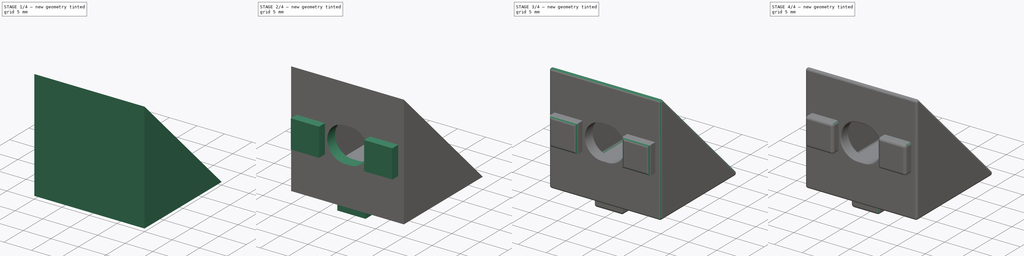
[diagram: build sequence overview — one tinted view per stage of 4, left to right]
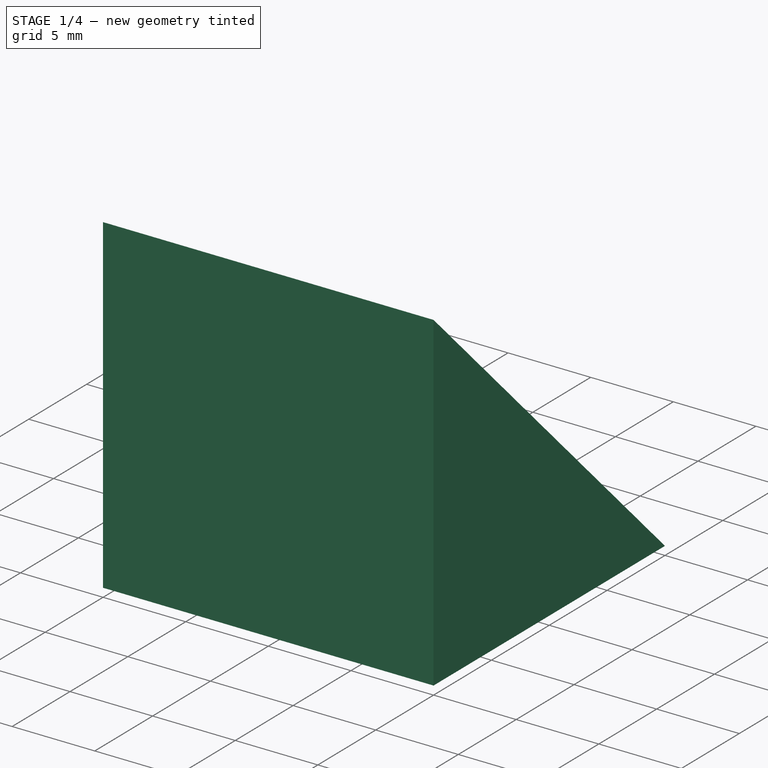
[diagram: stage 1 of 4 — iso view after this stage's code; geometry added in this stage tinted green]
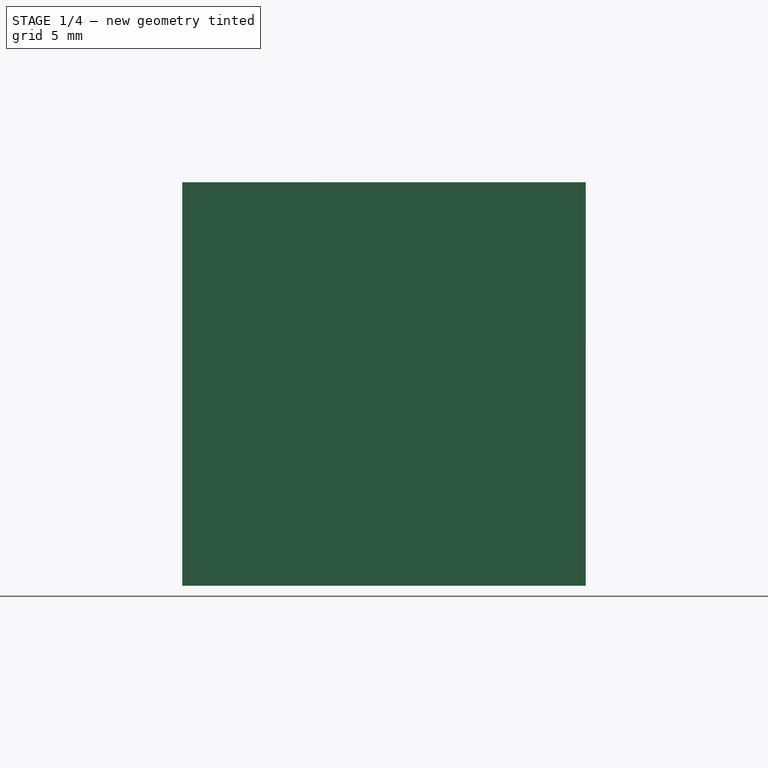
[diagram: stage 1 of 4 — front view after this stage's code; geometry added in this stage tinted green]
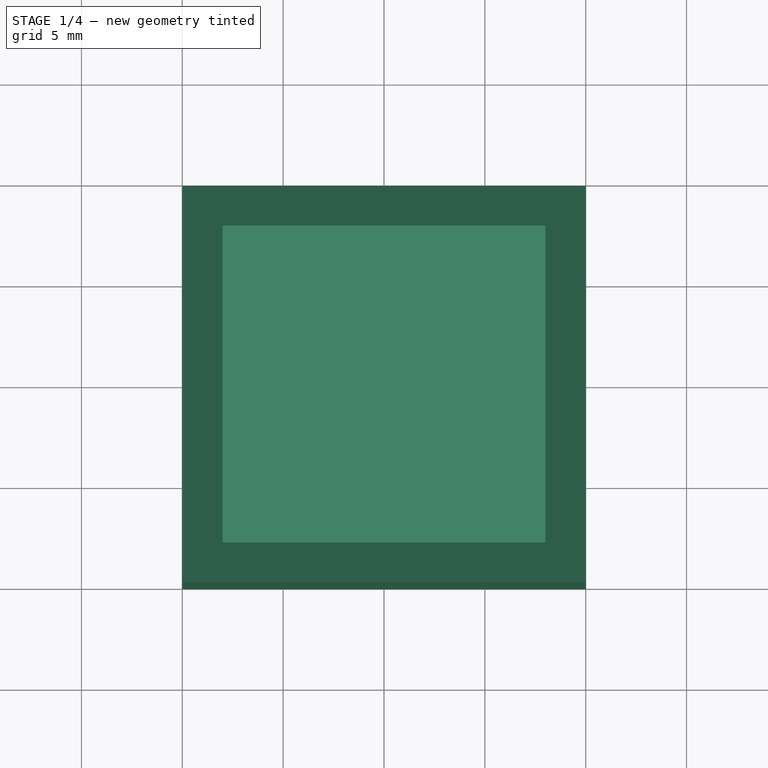
[diagram: stage 1 of 4 — top view after this stage's code; geometry added in this stage tinted green]
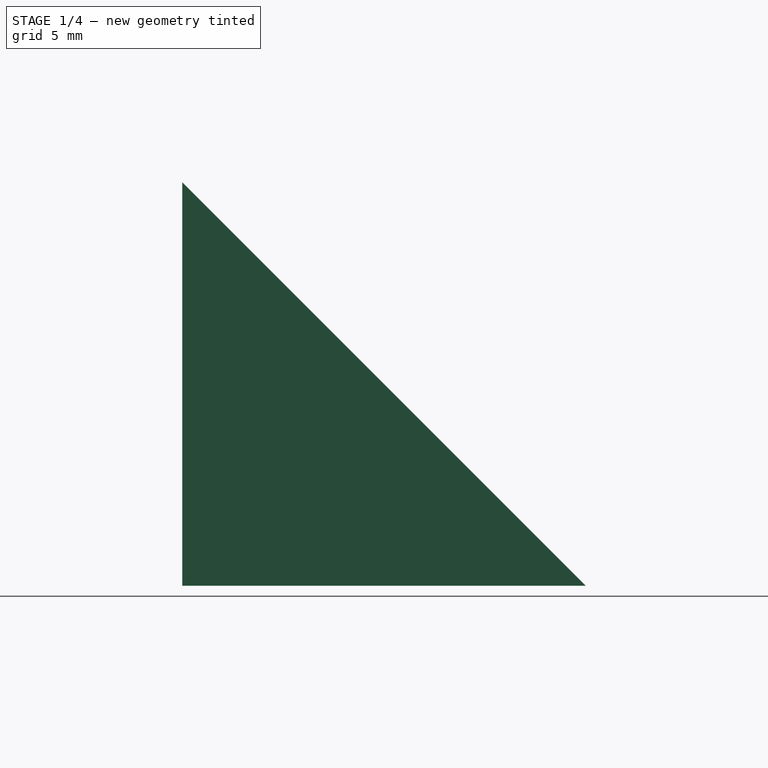
[diagram: stage 1 of 4 — right view after this stage's code; geometry added in this stage tinted green]
FCSTD DOCUMENT  (FreeCAD 0.20R29410 (Git))
Label: orthogonal_2020_aluminum_connector
License: All rights reserved
LicenseURL: http://en.wikipedia.org/wiki/All_rights_reserved
objects: Sketcher::SketchObject×5, PartDesign::Fillet×4, PartDesign::Pad×3, PartDesign::Pocket×2, PartDesign::Thickness×1, PartDesign::Body×1
note: 26 computed .brp shape members not serialized (recipe doc carries the construction recipe); baked Part::Feature solids carry a one-line shape summary decoded from their .brp

FEATURE [Sketcher::SketchObject] Sketch
  FullyConstrained = true
  MapMode = 5
  Placement = pos=(0,0,0) rot=(0.57735,0.57735,0.57735;2.0944rad)
  Support = -> [YZ_Plane]
  sketch-geometry (3):
    g0: LineSegment StartX=0 StartY=0 StartZ=0 EndX=20 EndY=0 EndZ=0
    g1: LineSegment StartX=0 StartY=20 StartZ=0 EndX=0 EndY=0 EndZ=0
    g2: LineSegment StartX=0 StartY=20 StartZ=0 EndX=20 EndY=0 EndZ=0
  constraints (8):
    c: Coincident(g0,g-1)
    c: PointOnObject(g0,g-1)
    c: PointOnObject(g1,g-2)
    c: Coincident(g1,g0)
    c: Coincident(g2,g1)
    c: Coincident(g2,g0)
    c: Equal(g0,g1)
    c: DistanceX(g0) = 20
FEATURE [PartDesign::Pad] Pad
  Direction = (1,-2e-16,3e-16)
  Length = 20
  Length2 = 10
  Placement = pos=(0,0,0) rot=(0.57735,0.57735,0.57735;2.0944rad)
  Profile = -> Sketch
  ReferenceAxis = -> Sketch [N_Axis]
  Type = 0
FEATURE [PartDesign::Thickness] Thickness
  Base = -> Pad [Face2]
  BaseFeature = -> Pad
  Intersection = false
  Join = 0
  Mode = 0
  Reversed = true
  SupportTransform = false
  Value = 2
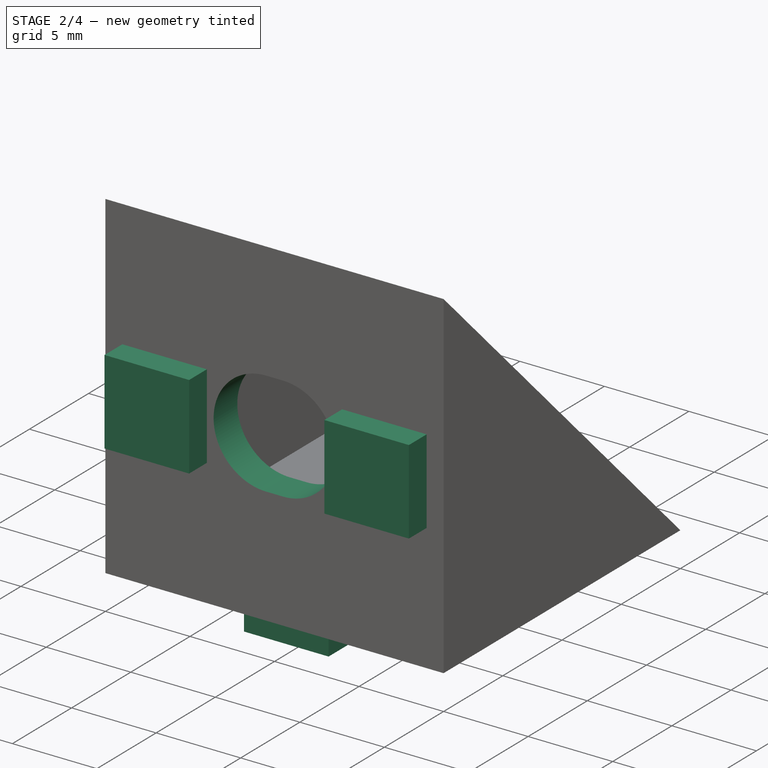
[diagram: stage 2 of 4 — iso view after this stage's code; geometry added in this stage tinted green]
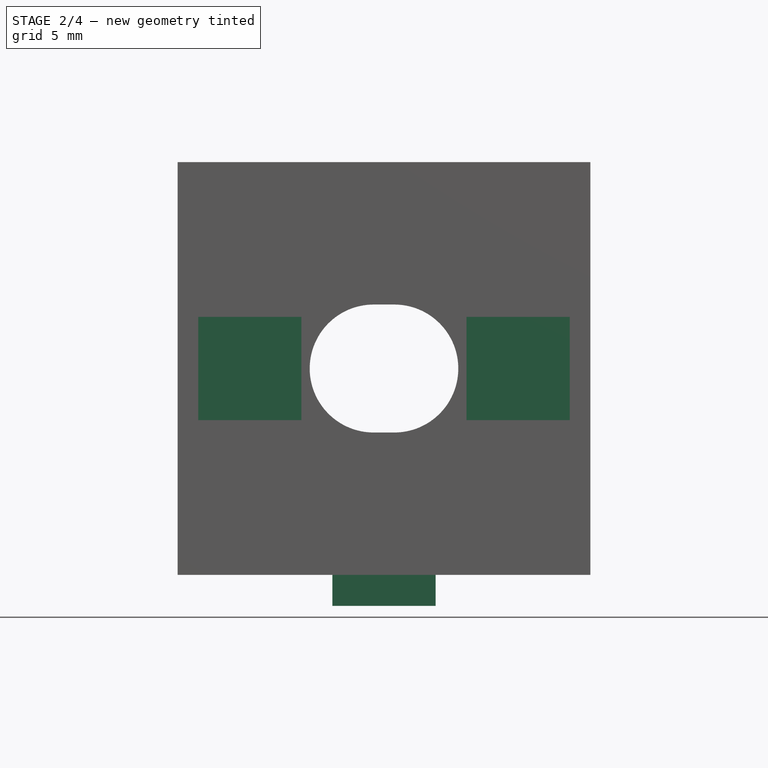
[diagram: stage 2 of 4 — front view after this stage's code; geometry added in this stage tinted green]
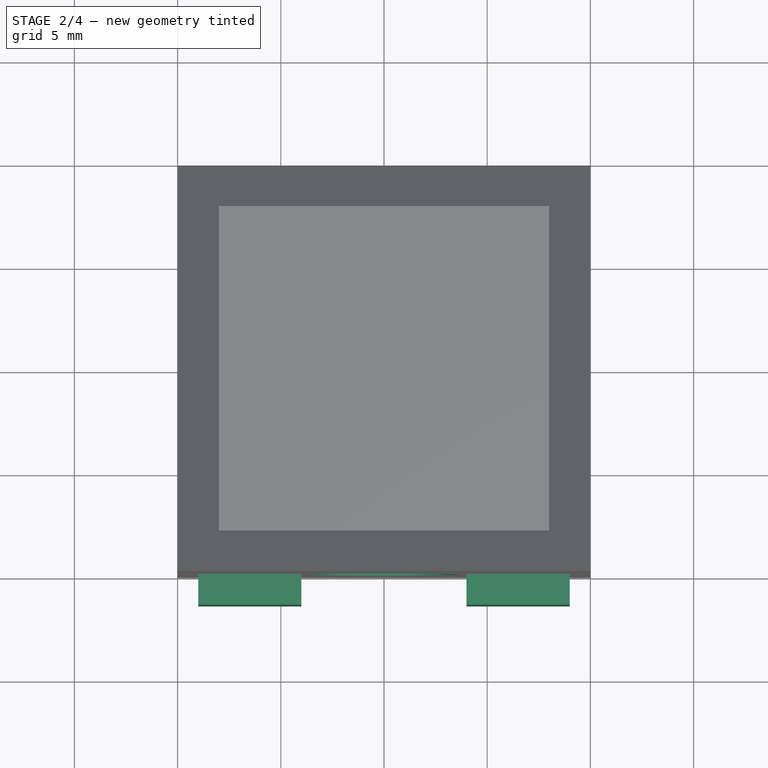
[diagram: stage 2 of 4 — top view after this stage's code; geometry added in this stage tinted green]
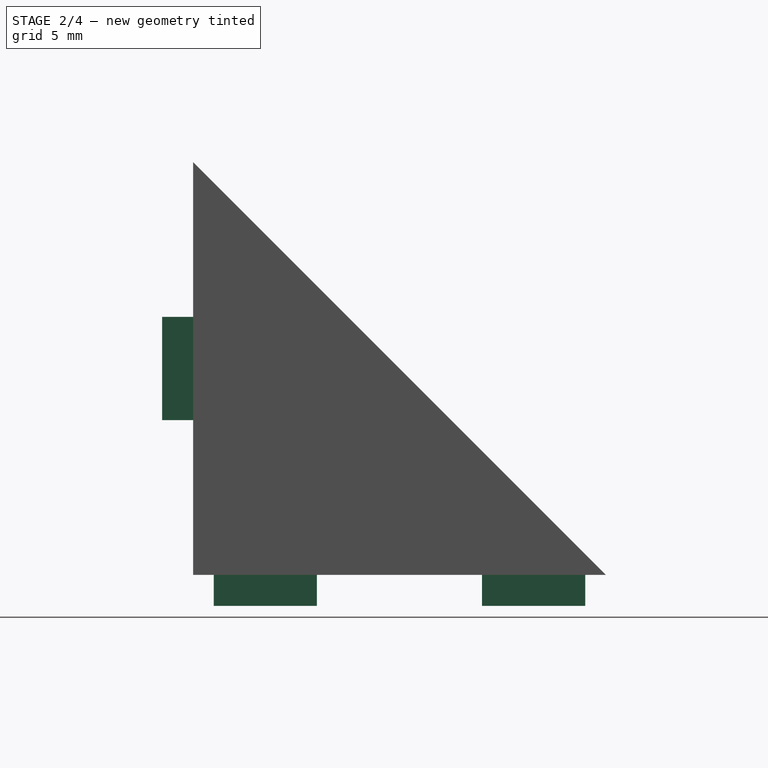
[diagram: stage 2 of 4 — right view after this stage's code; geometry added in this stage tinted green]
FEATURE [Sketcher::SketchObject] Sketch001
  ExternalGeometry = -> [Thickness]
  FullyConstrained = true
  MapMode = 5
  Placement = pos=(0,0,0) rot=(1,0,0;1.5708rad)
  Support = -> [Thickness]
  sketch-geometry (11):
    g0: LineSegment StartX=1 StartY=12.5 StartZ=0 EndX=6 EndY=12.5 EndZ=0
    g1: LineSegment StartX=6 StartY=12.5 StartZ=0 EndX=6 EndY=7.5 EndZ=0
    g2: LineSegment StartX=6 StartY=7.5 StartZ=0 EndX=1 EndY=7.5 EndZ=0
    g3: LineSegment StartX=1 StartY=7.5 StartZ=0 EndX=1 EndY=12.5 EndZ=0
    g4: LineSegment StartX=19 StartY=12.5 StartZ=0 EndX=14 EndY=12.5 EndZ=0
    g5: LineSegment StartX=14 StartY=12.5 StartZ=0 EndX=14 EndY=7.5 EndZ=0
    g6: LineSegment StartX=14 StartY=7.5 StartZ=0 EndX=19 EndY=7.5 EndZ=0
    g7: LineSegment StartX=19 StartY=7.5 StartZ=0 EndX=19 EndY=12.5 EndZ=0
    g8: GeomPoint X=1 Y=10 Z=0
    g9: LineSegment StartX=1 StartY=10 StartZ=0 EndX=1 EndY=12.5 EndZ=0
    g10: LineSegment StartX=1 StartY=7.5 StartZ=0 EndX=1 EndY=10 EndZ=0
  constraints (30):
    c: Coincident(g0,g1)
    c: Coincident(g1,g2)
    c: Coincident(g2,g3)
    c: Coincident(g3,g0)
    c: Horizontal(g0)
    c: Horizontal(g2)
    c: Vertical(g1)
    c: Vertical(g3)
    c: Coincident(g4,g5)
    c: Coincident(g5,g6)
    c: Coincident(g6,g7)
    c: Coincident(g7,g4)
    c: Horizontal(g4)
    c: Horizontal(g6)
    c: Vertical(g5)
    c: Vertical(g7)
    c: Equal(g6,g5)
    c: Equal(g5,g1)
    c: Equal(g1,g2)
    c: DistanceY(g3,g3) = 5
    c: PointOnObject(g8,g3)
    c: Coincident(g9,g8)
    c: Coincident(g9,g0)
    c: Coincident(g10,g2)
    c: Equal(g9,g10)
    c: Coincident(g9,g10)
    c: DistanceY(g-1,g9) = 10
    c: Horizontal(g1,g5)
    c: DistanceX(g2) = 1
    c: DistanceX(g6,g-4) = 1
FEATURE [PartDesign::Pad] Pad001
  BaseFeature = -> Thickness
  Direction = (-4e-16,-1,2e-16)
  Length = 1.5
  Length2 = 10
  Profile = -> Sketch001
  ReferenceAxis = -> Sketch001 [N_Axis]
  Type = 0
FEATURE [Sketcher::SketchObject] Sketch002
  FullyConstrained = true
  MapMode = 5
  Placement = pos=(0,0,0) rot=(1,0,0;1.5708rad)
  Support = -> [Pad001]
  sketch-geometry (7):
    g0: ArcOfCircle CenterX=9.5 CenterY=10 CenterZ=0 NormalX=0 NormalY=0 NormalZ=1 AngleXU=0 Radius=3.1 StartAngle=1.5708 EndAngle=4.71239
    g1: ArcOfCircle CenterX=10.5 CenterY=10 CenterZ=0 NormalX=0 NormalY=0 NormalZ=1 AngleXU=0 Radius=3.1 StartAngle=4.71239 EndAngle=7.85398
    g2: LineSegment StartX=9.5 StartY=6.9 StartZ=0 EndX=10.5 EndY=6.9 EndZ=0
    g3: LineSegment StartX=10.5 StartY=13.1 StartZ=0 EndX=9.5 EndY=13.1 EndZ=0
    g4: GeomPoint X=10 Y=6.9 Z=0
    g5: LineSegment StartX=9.5 StartY=6.9 StartZ=0 EndX=10 EndY=6.9 EndZ=0
    g6: LineSegment StartX=10 StartY=6.9 StartZ=0 EndX=10.5 EndY=6.9 EndZ=0
  constraints (16):
    c: Tangent(g0,g2) = -1.5708
    c: Tangent(g2,g1) = -1.5708
    c: Tangent(g1,g3) = -1.5708
    c: Tangent(g3,g0) = -1.5708
    c: Equal(g0,g1)
    c: Horizontal(g2)
    c: Diameter(g1) = 6.2
    c: DistanceY(g0) = 10
    c: DistanceX(g2,g2) = 1
    c: PointOnObject(g4,g2)
    c: Coincident(g5,g0)
    c: Coincident(g5,g4)
    c: Coincident(g6,g5)
    c: Coincident(g6,g1)
    c: Equal(g5,g6)
    c: DistanceX(g-1,g4) = 10
FEATURE [PartDesign::Pocket] Pocket
  BaseFeature = -> Pad001
  Direction = (4e-16,1,-2e-16)
  Length = 5
  Length2 = 5
  Profile = -> Sketch002
  ReferenceAxis = -> Sketch002 [N_Axis]
  Type = 0
FEATURE [Sketcher::SketchObject] Sketch003
  ExternalGeometry = -> [Pocket]
  FullyConstrained = true
  MapMode = 5
  Placement = pos=(0,0,0) rot=(1,0,0;3.14159rad)
  Support = -> [Pocket]
  sketch-geometry (11):
    g0: LineSegment StartX=7.5 StartY=-1 StartZ=0 EndX=12.5 EndY=-1 EndZ=0
    g1: LineSegment StartX=12.5 StartY=-1 StartZ=0 EndX=12.5 EndY=-6 EndZ=0
    g2: LineSegment StartX=12.5 StartY=-6 StartZ=0 EndX=7.5 EndY=-6 EndZ=0
    g3: LineSegment StartX=7.5 StartY=-6 StartZ=0 EndX=7.5 EndY=-1 EndZ=0
    g4: LineSegment StartX=7.5 StartY=-14 StartZ=0 EndX=12.5 EndY=-14 EndZ=0
    g5: LineSegment StartX=12.5 StartY=-14 StartZ=0 EndX=12.5 EndY=-19 EndZ=0
    g6: LineSegment StartX=12.5 StartY=-19 StartZ=0 EndX=7.5 EndY=-19 EndZ=0
    g7: LineSegment StartX=7.5 StartY=-19 StartZ=0 EndX=7.5 EndY=-14 EndZ=0
    g8: GeomPoint X=10 Y=-1 Z=0
    g9: LineSegment StartX=7.5 StartY=-1 StartZ=0 EndX=10 EndY=-1 EndZ=0
    g10: LineSegment StartX=10 StartY=-1 StartZ=0 EndX=12.5 EndY=-1 EndZ=0
  constraints (30):
    c: Coincident(g0,g1)
    c: Coincident(g1,g2)
    c: Coincident(g2,g3)
    c: Coincident(g3,g0)
    c: Horizontal(g0)
    c: Horizontal(g2)
    c: Vertical(g1)
    c: Vertical(g3)
    c: Coincident(g4,g5)
    c: Coincident(g5,g6)
    c: Coincident(g6,g7)
    c: Coincident(g7,g4)
    c: Horizontal(g4)
    c: Horizontal(g6)
    c: Vertical(g5)
    c: Vertical(g7)
    c: Equal(g0,g3)
    c: Equal(g3,g4)
    c: Equal(g4,g7)
    c: Vertical(g2,g4)
    c: DistanceY(g0) = -1
    c: DistanceY(g-4,g6) = 1
    c: PointOnObject(g8,g0)
    c: Coincident(g9,g0)
    c: Coincident(g9,g8)
    c: Coincident(g10,g9)
    c: Coincident(g10,g0)
    c: Equal(g9,g10)
    c: DistanceX(g8) = 10
    c: DistanceY(g3,g3) = 5
FEATURE [PartDesign::Pad] Pad002
  BaseFeature = -> Pocket
  Direction = (4e-16,-6e-16,-1)
  Length = 1.5
  Length2 = 10
  Profile = -> Sketch003
  ReferenceAxis = -> Sketch003 [N_Axis]
  Type = 0
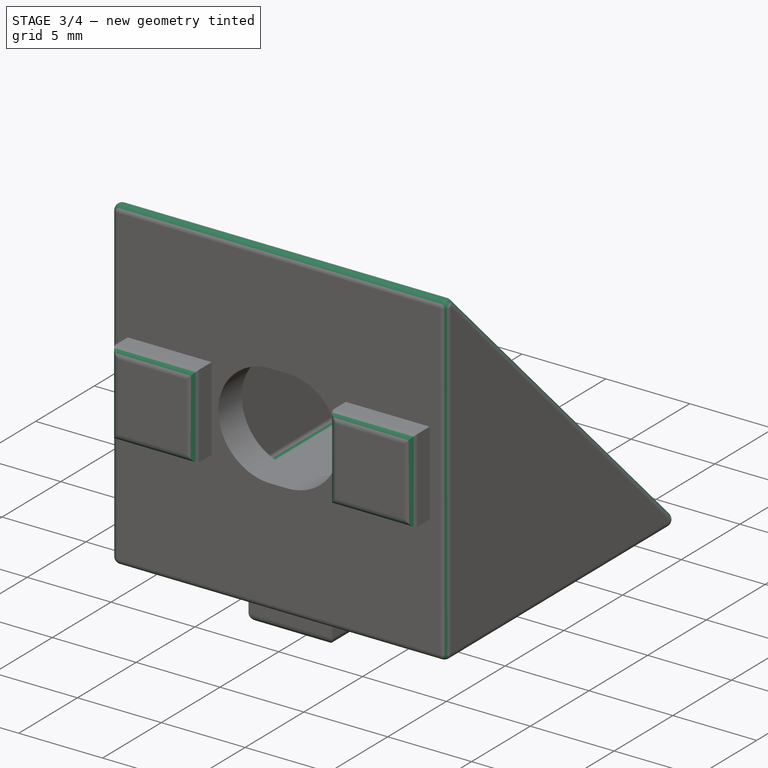
[diagram: stage 3 of 4 — iso view after this stage's code; geometry added in this stage tinted green]
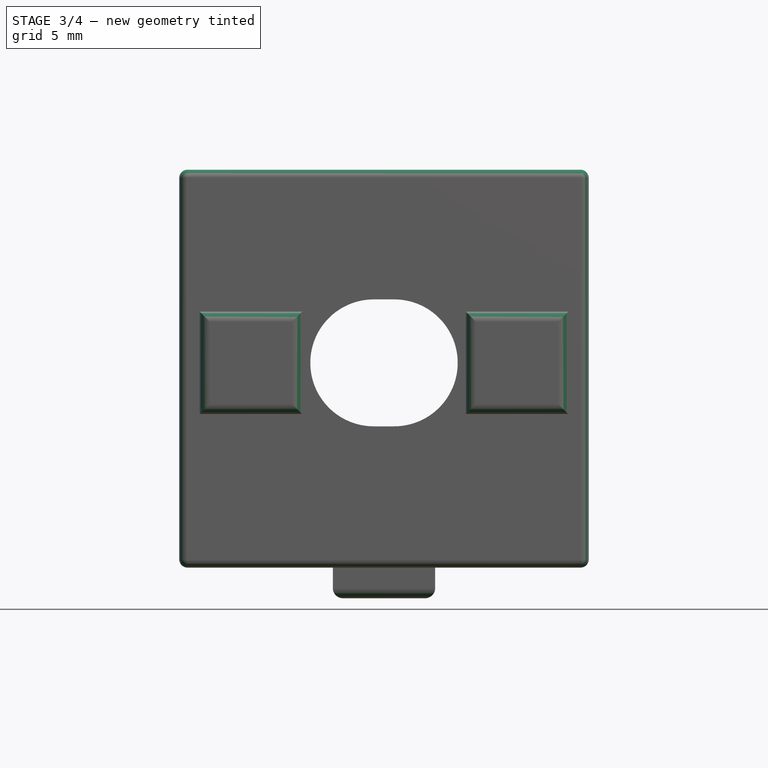
[diagram: stage 3 of 4 — front view after this stage's code; geometry added in this stage tinted green]
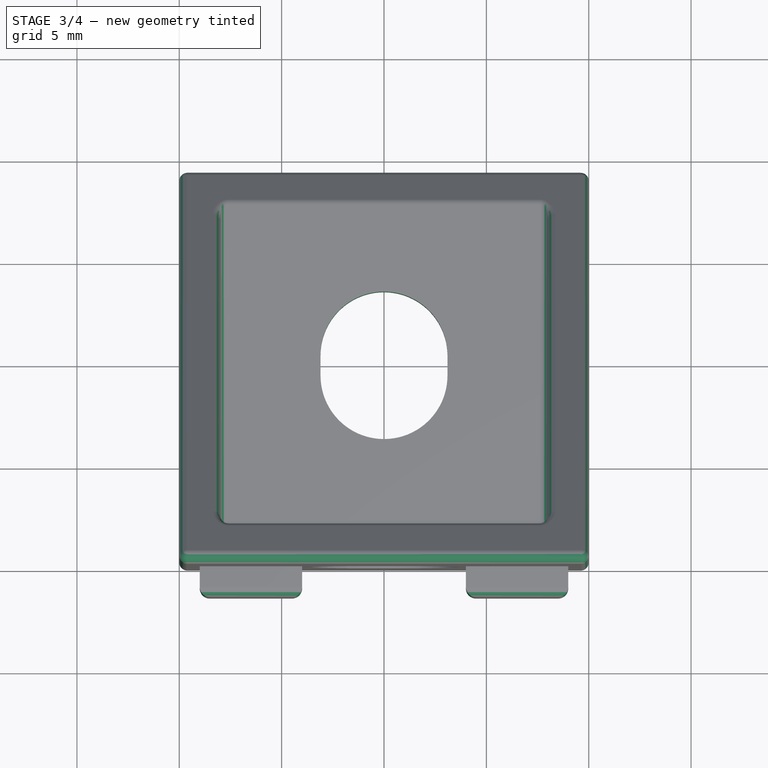
[diagram: stage 3 of 4 — top view after this stage's code; geometry added in this stage tinted green]
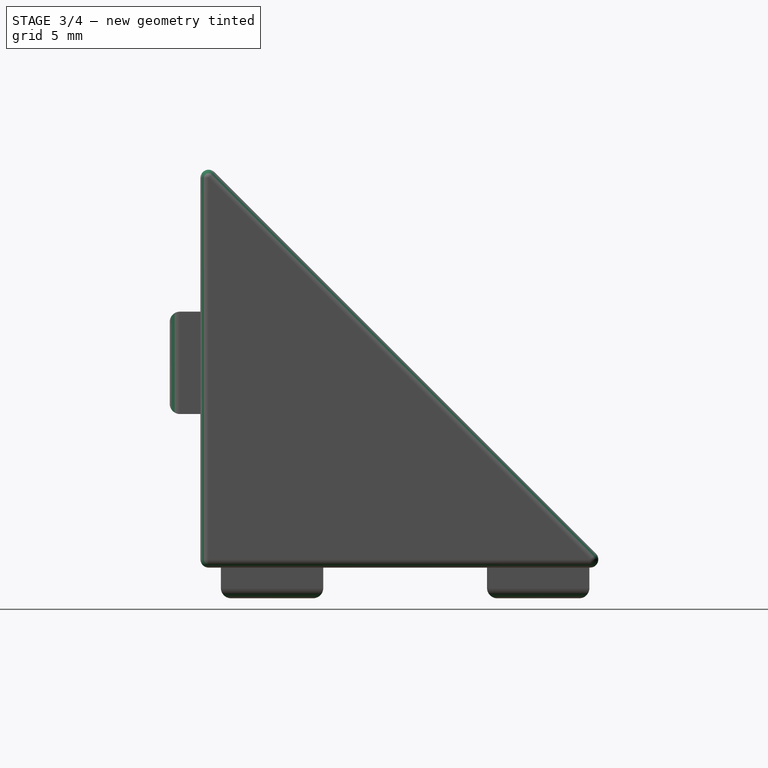
[diagram: stage 3 of 4 — right view after this stage's code; geometry added in this stage tinted green]
FEATURE [Sketcher::SketchObject] Sketch004
  FullyConstrained = true
  MapMode = 5
  Placement = pos=(0,0,0) rot=(1,0,0;3.14159rad)
  Support = -> [Pad002]
  sketch-geometry (7):
    g0: ArcOfCircle CenterX=10 CenterY=-9.5 CenterZ=0 NormalX=0 NormalY=0 NormalZ=1 AngleXU=0 Radius=3.1 StartAngle=0 EndAngle=3.14159
    g1: ArcOfCircle CenterX=10 CenterY=-10.5 CenterZ=0 NormalX=0 NormalY=0 NormalZ=1 AngleXU=0 Radius=3.1 StartAngle=3.14159 EndAngle=6.28319
    g2: LineSegment StartX=6.9 StartY=-9.5 StartZ=0 EndX=6.9 EndY=-10.5 EndZ=0
    g3: LineSegment StartX=13.1 StartY=-10.5 StartZ=0 EndX=13.1 EndY=-9.5 EndZ=0
    g4: GeomPoint X=6.9 Y=-10 Z=0
    g5: LineSegment StartX=6.9 StartY=-9.5 StartZ=0 EndX=6.9 EndY=-10 EndZ=0
    g6: LineSegment StartX=6.9 StartY=-10 StartZ=0 EndX=6.9 EndY=-10.5 EndZ=0
  constraints (16):
    c: Tangent(g0,g2) = -1.5708
    c: Tangent(g2,g1) = -1.5708
    c: Tangent(g1,g3) = -1.5708
    c: Tangent(g3,g0) = -1.5708
    c: Equal(g0,g1)
    c: Vertical(g2)
    c: DistanceY(g3,g3) = 1
    c: Diameter(g0) = 6.2
    c: DistanceX(g1) = 10
    c: PointOnObject(g4,g2)
    c: Coincident(g5,g0)
    c: Coincident(g5,g4)
    c: Coincident(g6,g5)
    c: Coincident(g6,g1)
    c: Equal(g5,g6)
    c: DistanceY(g4) = -10
FEATURE [PartDesign::Pocket] Pocket001  label="Pocket002"
  BaseFeature = -> Pad002
  Direction = (-4e-16,6e-16,1)
  Length = 5
  Length2 = 5
  Profile = -> Sketch004
  ReferenceAxis = -> Sketch004 [N_Axis]
  Type = 0
FEATURE [PartDesign::Fillet] Fillet
  Base = -> Pocket001 [Edge32,Edge18,Edge2,Edge4,Edge1,Edge3,Edge19,Edge17,Edge33,Edge37,Edge34,Edge35,Edge36,Edge89,Edge86,Edge87,Edge88,Edge90]
  BaseFeature = -> Pocket001
  Radius = 0.4
  SupportTransform = false
  UseAllEdges = false
FEATURE [PartDesign::Fillet] Fillet001
  Base = -> Fillet [Edge52,Edge49,Edge47,Edge51,Edge36,Edge33,Edge35,Edge31,Edge104,Edge102,Edge106,Edge107,Edge122,Edge123,Edge120,Edge118]
  BaseFeature = -> Fillet
  Radius = 0.5
  SupportTransform = false
  UseAllEdges = false
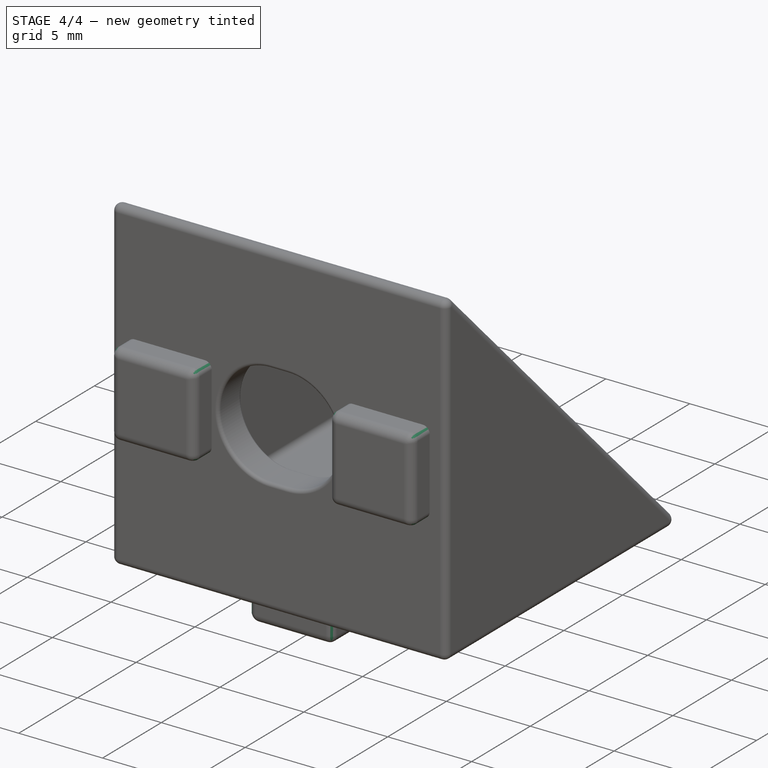
[diagram: stage 4 of 4 — iso view after this stage's code; geometry added in this stage tinted green]
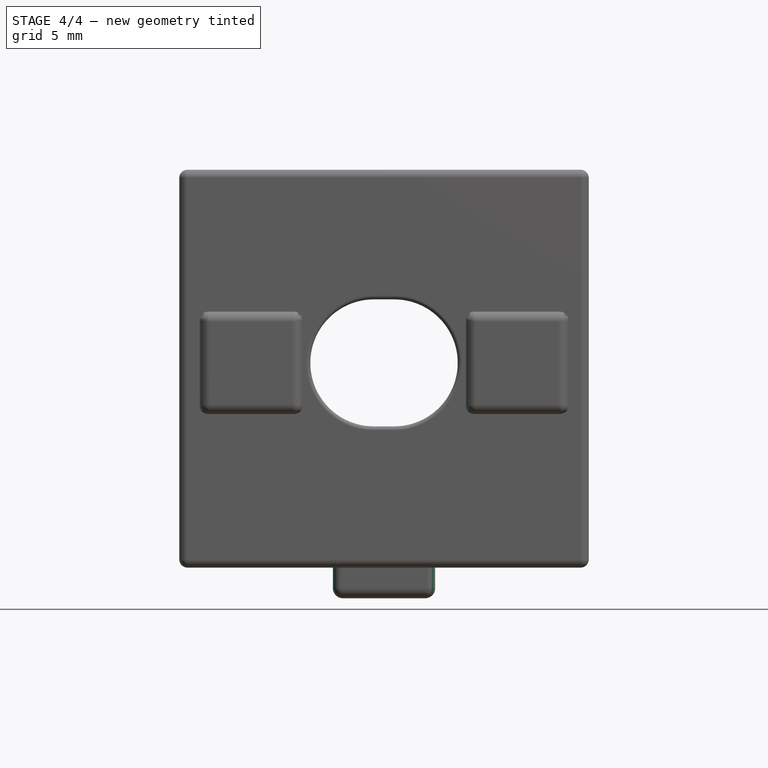
[diagram: stage 4 of 4 — front view after this stage's code; geometry added in this stage tinted green]
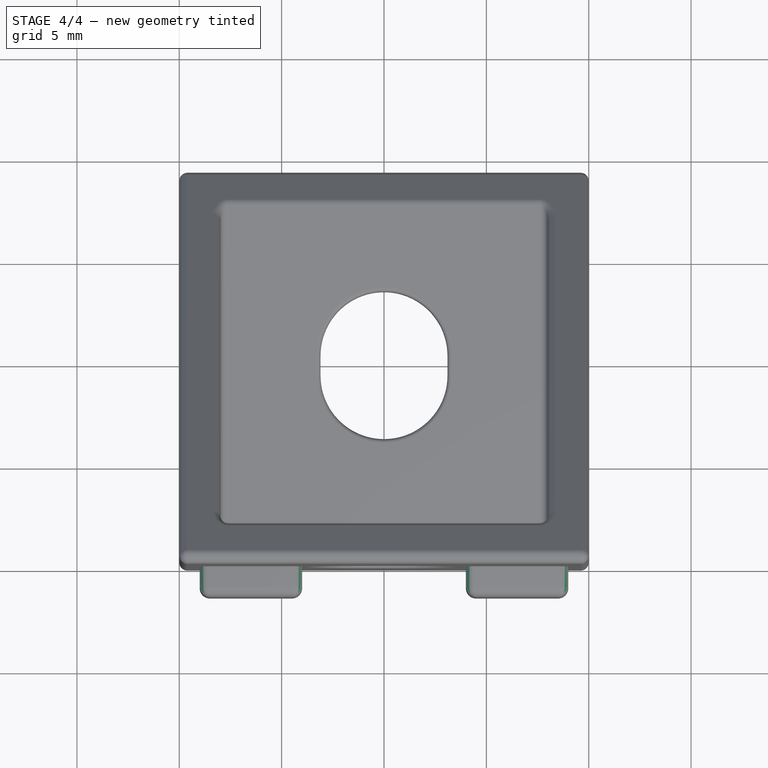
[diagram: stage 4 of 4 — top view after this stage's code; geometry added in this stage tinted green]
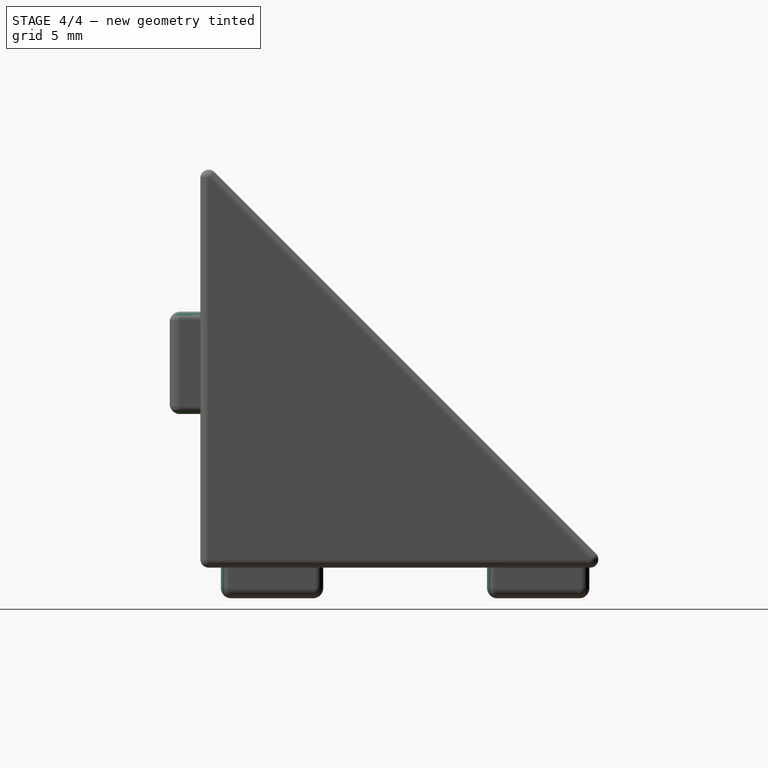
[diagram: stage 4 of 4 — right view after this stage's code; geometry added in this stage tinted green]
FEATURE [PartDesign::Fillet] Fillet002
  Base = -> Fillet001 [Edge131,Edge125,Edge127,Edge129,Edge52,Edge50,Edge48,Edge46,Edge77,Edge75,Edge76,Edge74,Edge18,Edge19,Edge20,Edge17]
  BaseFeature = -> Fillet001
  Radius = 0.2
  SupportTransform = false
  UseAllEdges = false
FEATURE [PartDesign::Fillet] Fillet003  label="orthogonal_2020_aluminum_connector"
  Base = -> Fillet002 [Edge37,Edge99,Edge39,Edge101,Edge105,Edge43,Edge102,Edge40,Edge107,Edge45,Edge110,Edge48,Edge113,Edge51,Edge47,Edge109,Edge144,Edge190,Edge147,Edge193,Edge196,Edge150,Edge192,Edge146,Edge184,Edge138,Edge182,Edge136,Edge185,Edge139,Edge188,Edge142]
  BaseFeature = -> Fillet002
  Radius = 0.4
  SupportTransform = false
  UseAllEdges = false
FEATURE [PartDesign::Body] Body
  Group = -> [Sketch,Pad,Thickness,Sketch001,Pad001,Sketch002,Pocket,Sketch003,Pad002,Sketch004,Pocket001,Fillet,Fillet001,Fillet002,Fillet003]
  Origin = -> Origin
  Tip = -> Fillet003
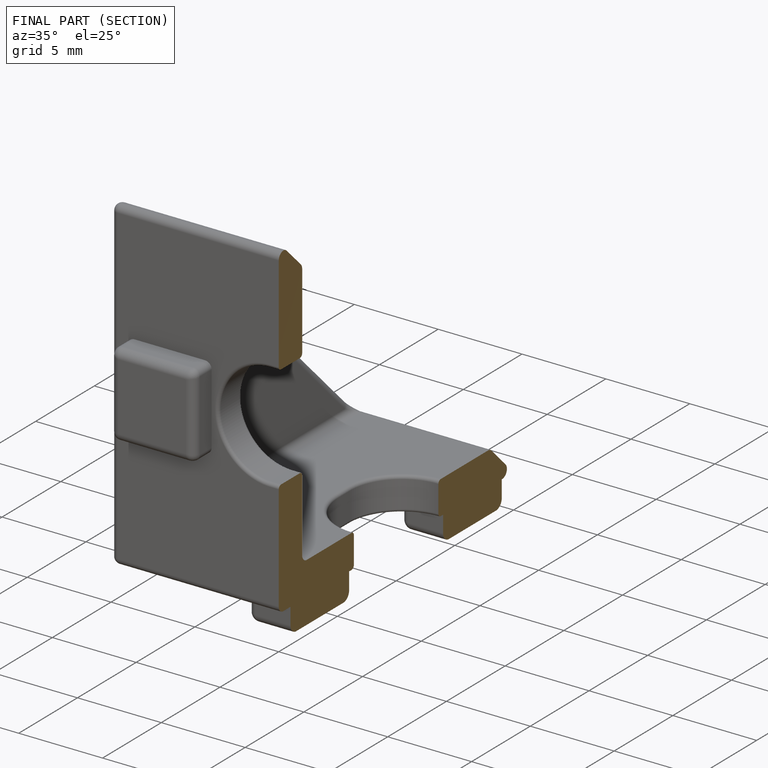
[diagram: finished part — half-section view (interior)]
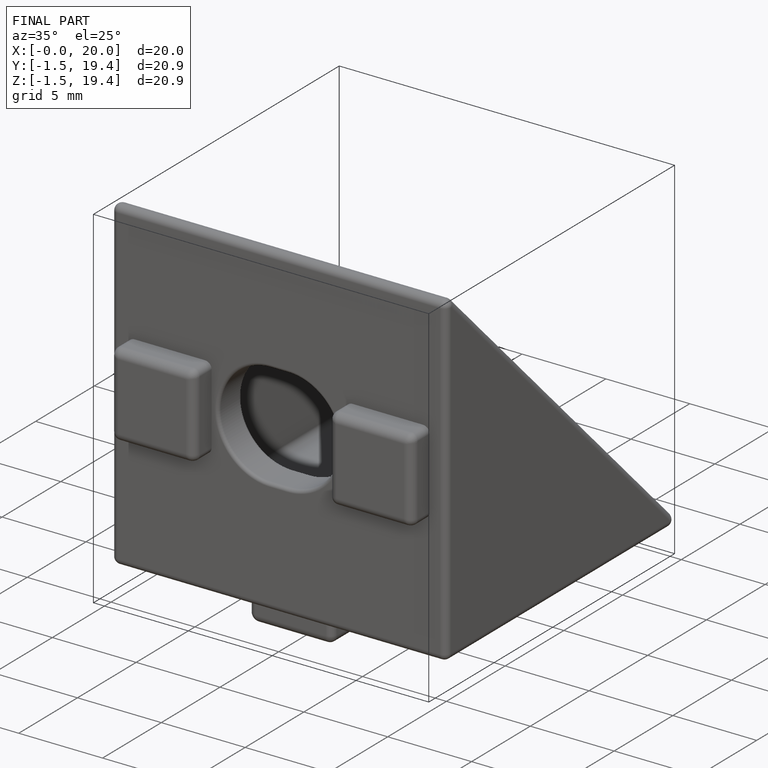
[diagram: finished part — iso view with bounding-box wireframe]
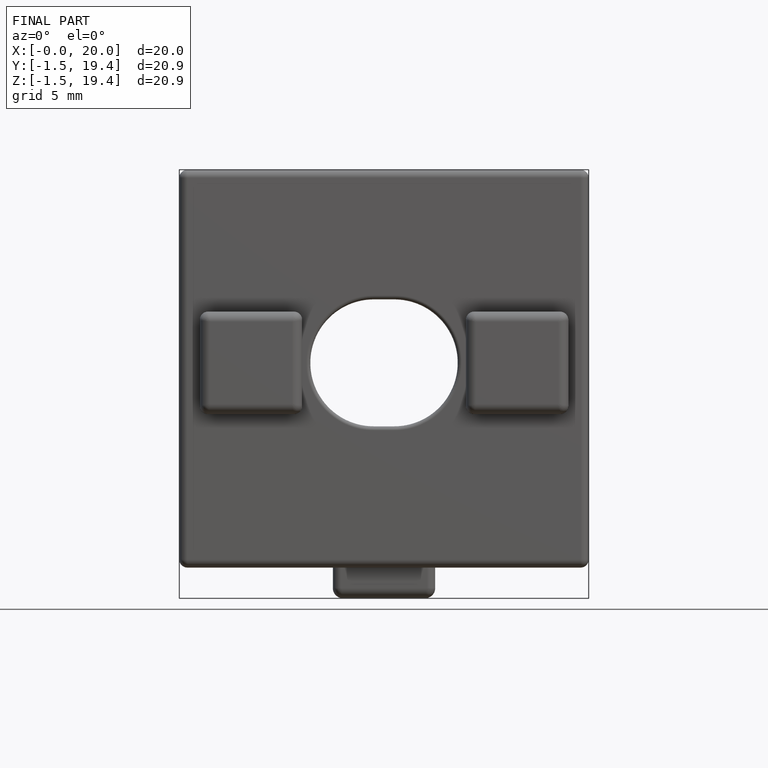
[diagram: finished part — front view with bounding-box wireframe]
